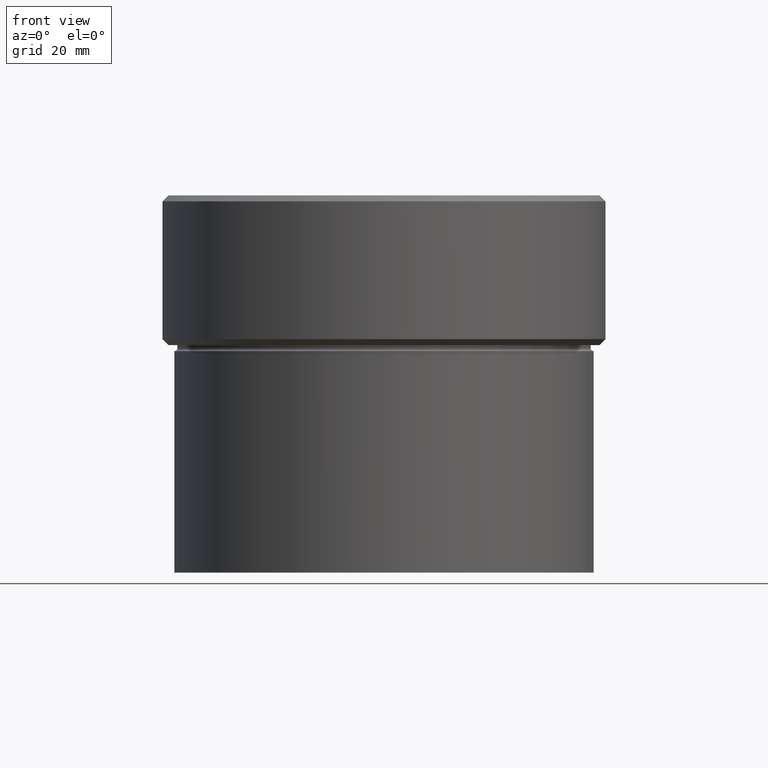
[diagram: clean part render]
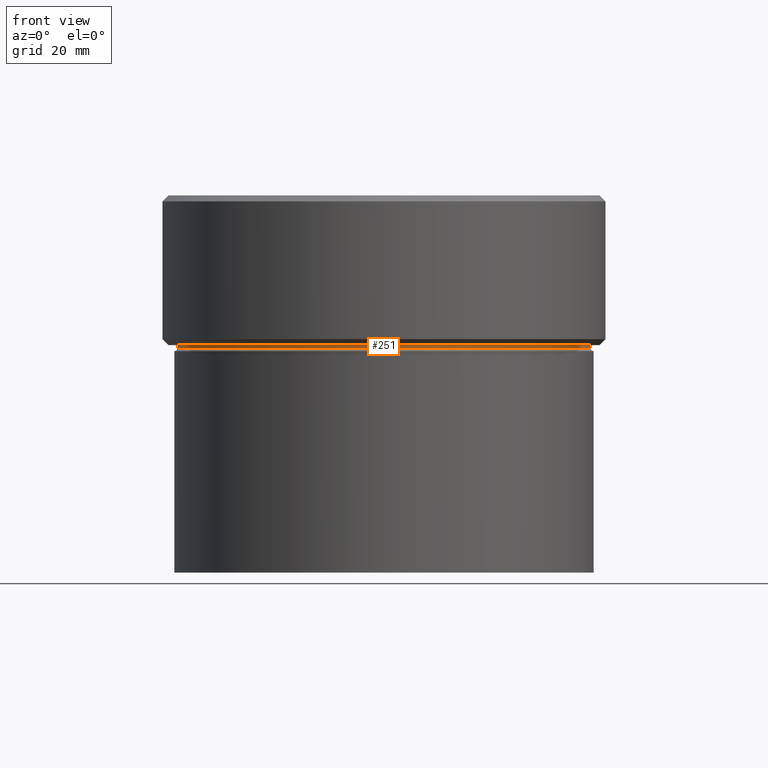
[diagram: same view with one face highlighted and labeled with its STEP entity id]
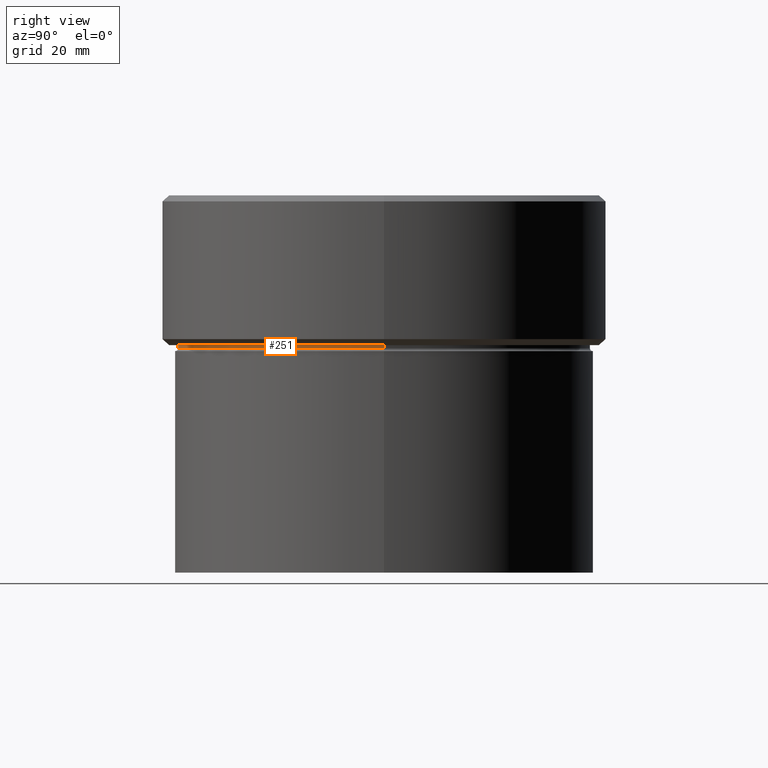
[diagram: same view with one face highlighted and labeled with its STEP entity id]
A machine part, front view. The second image highlights one B-rep face of the part: STEP entity #251.
A second angle (right view) of the same face is appended — the face is thin or edge-on in the first view.
In plain terms, the highlighted cylindrical surface (partial cylindrical patch) has radius 34.5 mm, axis along (-0, -0, 1).
Its self-contained STEP definition (entity closure, byte-faithful):
#20 = CARTESIAN_POINT ( 'NONE',  ( 34.50000000000000000, 0.000000000000000000, -25.00000000000000000 ) ) ;
#21 = VERTEX_POINT ( 'NONE', #20 ) ;
#48 = CARTESIAN_POINT ( 'NONE',  ( 0.000000000000000000, 0.000000000000000000, 0.000000000000000000 ) ) ;
#49 = AXIS2_PLACEMENT_3D ( 'NONE', #59, #255, #219 ) ;
#59 = CARTESIAN_POINT ( 'NONE',  ( 0.000000000000000000, 0.000000000000000000, -25.00000000000000000 ) ) ;
#68 = EDGE_CURVE ( 'NONE', #366, #386, #282, .T. ) ;
#95 = AXIS2_PLACEMENT_3D ( 'NONE', #48, #291, #208 ) ;
#115 = CARTESIAN_POINT ( 'NONE',  ( -34.50000000000000000, 4.225031457058368922E-15, -25.00000000000000000 ) ) ;
#138 = DIRECTION ( 'NONE',  ( -0.000000000000000000, -0.000000000000000000, 1.000000000000000000 ) ) ;
#145 = VERTEX_POINT ( 'NONE', #524 ) ;
#153 = EDGE_LOOP ( 'NONE', ( #280, #324, #217, #509 ) ) ;
#173 = FACE_OUTER_BOUND ( 'NONE', #153, .T. ) ;
#197 = DIRECTION ( 'NONE',  ( -0.000000000000000000, -0.000000000000000000, 1.000000000000000000 ) ) ;
#208 = DIRECTION ( 'NONE',  ( 1.000000000000000000, 0.000000000000000000, 0.000000000000000000 ) ) ;
#217 = ORIENTED_EDGE ( 'NONE', *, *, #389, .T. ) ;
#219 = DIRECTION ( 'NONE',  ( 1.000000000000000000, 0.000000000000000000, 0.000000000000000000 ) ) ;
#223 = CIRCLE ( 'NONE', #410, 34.50000000000000000 ) ;
#240 = VECTOR ( 'NONE', #394, 1000.000000000000000 ) ;
#251 = ADVANCED_FACE ( 'NONE', ( #173 ), #415, .T. ) ;
#255 = DIRECTION ( 'NONE',  ( -0.000000000000000000, -0.000000000000000000, 1.000000000000000000 ) ) ;
#270 = CARTESIAN_POINT ( 'NONE',  ( -34.50000000000000000, 4.225031457058368922E-15, -25.50000000000000000 ) ) ;
#280 = ORIENTED_EDGE ( 'NONE', *, *, #68, .F. ) ;
#282 = LINE ( 'NONE', #311, #240 ) ;
#291 = DIRECTION ( 'NONE',  ( -0.000000000000000000, -0.000000000000000000, 1.000000000000000000 ) ) ;
#302 = EDGE_CURVE ( 'NONE', #366, #145, #223, .T. ) ;
#311 = CARTESIAN_POINT ( 'NONE',  ( -34.50000000000000000, 4.225031457058368922E-15, 0.000000000000000000 ) ) ;
#324 = ORIENTED_EDGE ( 'NONE', *, *, #302, .T. ) ;
#331 = VECTOR ( 'NONE', #197, 1000.000000000000000 ) ;
#351 = DIRECTION ( 'NONE',  ( 1.000000000000000000, 0.000000000000000000, 0.000000000000000000 ) ) ;
#363 = LINE ( 'NONE', #449, #331 ) ;
#366 = VERTEX_POINT ( 'NONE', #270 ) ;
#386 = VERTEX_POINT ( 'NONE', #115 ) ;
#388 = CIRCLE ( 'NONE', #49, 34.50000000000000000 ) ;
#389 = EDGE_CURVE ( 'NONE', #145, #21, #363, .T. ) ;
#394 = DIRECTION ( 'NONE',  ( -0.000000000000000000, -0.000000000000000000, 1.000000000000000000 ) ) ;
#410 = AXIS2_PLACEMENT_3D ( 'NONE', #427, #138, #351 ) ;
#414 = EDGE_CURVE ( 'NONE', #386, #21, #388, .T. ) ;
#415 = CYLINDRICAL_SURFACE ( 'NONE', #95, 34.50000000000000000 ) ;
#427 = CARTESIAN_POINT ( 'NONE',  ( 0.000000000000000000, 0.000000000000000000, -25.50000000000000000 ) ) ;
#449 = CARTESIAN_POINT ( 'NONE',  ( 34.50000000000000000, 0.000000000000000000, 0.000000000000000000 ) ) ;
#509 = ORIENTED_EDGE ( 'NONE', *, *, #414, .F. ) ;
#524 = CARTESIAN_POINT ( 'NONE',  ( 34.50000000000000000, 0.000000000000000000, -25.50000000000000000 ) ) ;